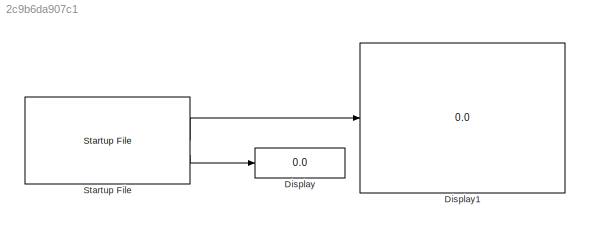
MODEL slx_2c9b6da907c1
KIND model
CONFIG AbsTol = auto
CONFIG EnableMultiTasking = on
CONFIG FixedStep = 1
CONFIG MaxStep = auto
CONFIG MinStep = auto
CONFIG RelTol = 1e-3
CONFIG SampleTimeConstraint = Unconstrained
CONFIG SolverName = FixedStepDiscrete
CONFIG StartTime = 0.0
CONFIG StopTime = inf
BLOCK [Display] Display
  Decimation = 1
BLOCK [Display] Display1
  Decimation = 1
  Format = hex (Stored Integer)
BLOCK [Reference] Startup File  REF=ETF_Library/Startup File
  SourceBlock = ETF_Library/Startup File
LINE Startup File:1 -> Display1:1
LINE Startup File:2 -> Display:1
